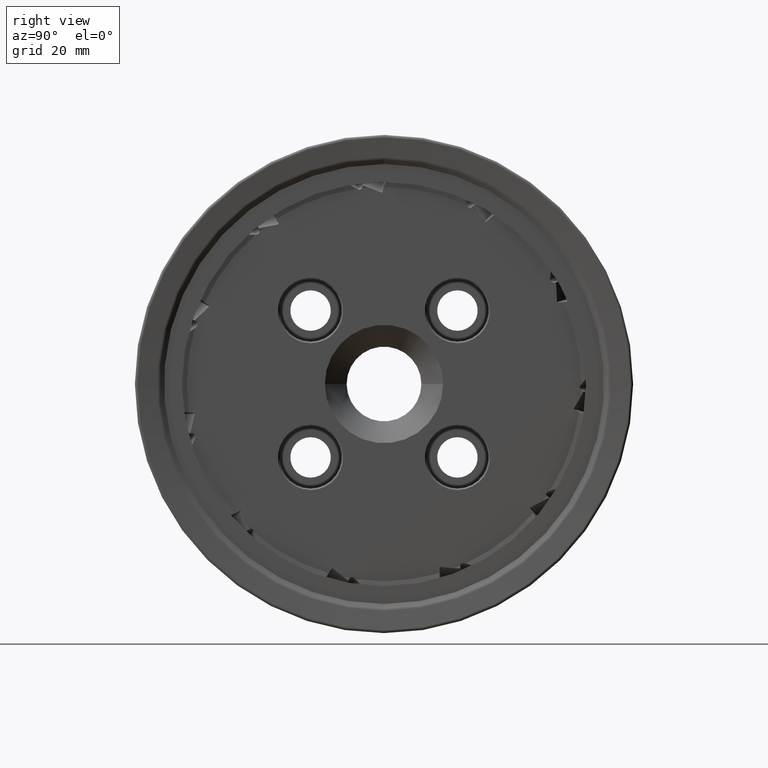
[diagram: clean part render]
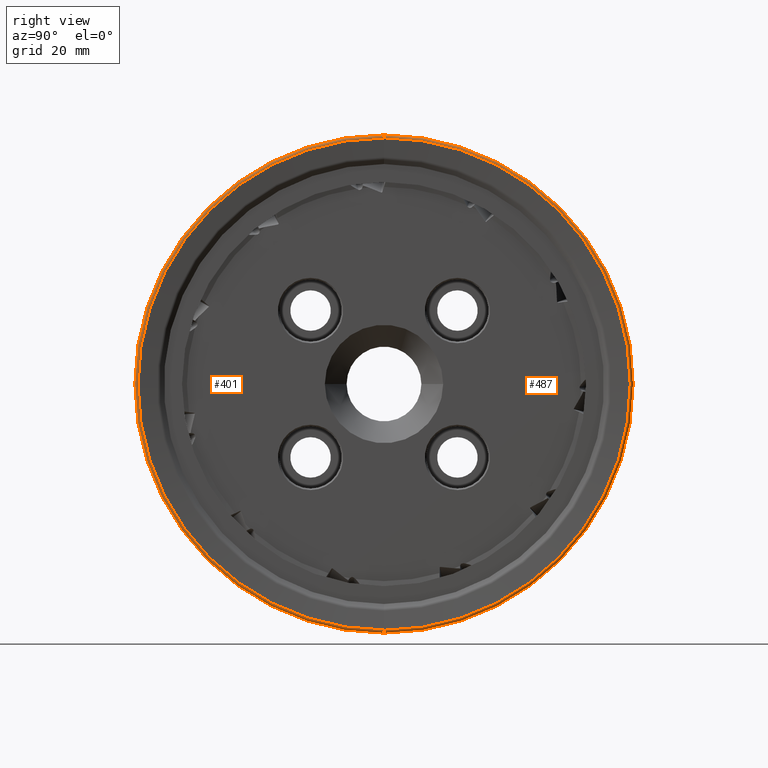
[diagram: same view with one multi-face feature highlighted, each face labeled with its STEP entity id]
A machine part, right view. The highlighted faces form ONE feature: a constant-radius fillet chain: 2 tangent blend faces with common blend radius 0.8162 mm. The faces share edges in the B-rep.
Their STEP definitions:
[1] entity #487 (Torus):
#487 = ADVANCED_FACE ( 'NONE', ( #6866 ), #6871, .T. ) ;
#990 = EDGE_CURVE ( 'NONE', #1880, #2128, #9497, .T. ) ;
#996 = EDGE_CURVE ( 'NONE', #2088, #1880, #9504, .T. ) ;
#1002 = EDGE_CURVE ( 'NONE', #2088, #1895, #9509, .T. ) ;
#1235 = EDGE_CURVE ( 'NONE', #1895, #2128, #9735, .T. ) ;
#1880 = VERTEX_POINT ( 'NONE', #12975 ) ;
#1895 = VERTEX_POINT ( 'NONE', #12990 ) ;
#2088 = VERTEX_POINT ( 'NONE', #13183 ) ;
#2128 = VERTEX_POINT ( 'NONE', #13223 ) ;
#3899 = EDGE_LOOP ( 'NONE', ( #4931, #4193, #4842, #4869 ) ) ;
#4193 = ORIENTED_EDGE ( 'NONE', *, *, #990, .T. ) ;
#4842 = ORIENTED_EDGE ( 'NONE', *, *, #1235, .F. ) ;
#4869 = ORIENTED_EDGE ( 'NONE', *, *, #1002, .F. ) ;
#4931 = ORIENTED_EDGE ( 'NONE', *, *, #996, .T. ) ;
#5764 = AXIS2_PLACEMENT_3D ( 'NONE', #7474, #7473, #7476 ) ;
#6866 = FACE_OUTER_BOUND ( 'NONE', #3899, .T. ) ;
#6871 = TOROIDAL_SURFACE ( 'NONE', #5764, 79.18379672538669900, 0.8162032746133075500 ) ;
#7473 = DIRECTION ( 'NONE',  ( 1.000000000000000000, -0.0000000000000000000, -0.0000000000000000000 ) ) ;
#7474 = CARTESIAN_POINT ( 'NONE',  ( 0.9337967253866993300, 0.0000000000000000000, 0.0000000000000000000 ) ) ;
#7476 = DIRECTION ( 'NONE',  ( 0.0000000000000000000, 0.0000000000000000000, -1.000000000000000000 ) ) ;
#8961 = AXIS2_PLACEMENT_3D ( 'NONE', #10243, #10247, #10248 ) ;
#8965 = AXIS2_PLACEMENT_3D ( 'NONE', #10264, #10265, #10266 ) ;
#8968 = AXIS2_PLACEMENT_3D ( 'NONE', #10280, #10285, #10286 ) ;
#9062 = AXIS2_PLACEMENT_3D ( 'NONE', #11058, #11078, #11079 ) ;
#9497 = CIRCLE ( 'NONE', #8961, 0.8162032746133057700 ) ;
#9504 = CIRCLE ( 'NONE', #8965, 80.00000000000000000 ) ;
#9509 = CIRCLE ( 'NONE', #8968, 0.8162032746133057700 ) ;
#9735 = CIRCLE ( 'NONE', #9062, 79.09236068706619000 ) ;
#10243 = CARTESIAN_POINT ( 'NONE',  ( 0.9337967253866993300, 9.697218320407948100E-015, 79.18379672538669900 ) ) ;
#10247 = DIRECTION ( 'NONE',  ( 0.0000000000000000000, 1.000000000000000000, -1.224646799147353200E-016 ) ) ;
#10248 = DIRECTION ( 'NONE',  ( 0.0000000000000000000, 1.224646799147351200E-016, 1.000000000000000000 ) ) ;
#10264 = CARTESIAN_POINT ( 'NONE',  ( 0.9337967253866992200, 0.0000000000000000000, 0.0000000000000000000 ) ) ;
#10265 = DIRECTION ( 'NONE',  ( 1.000000000000000000, -0.0000000000000000000, -0.0000000000000000000 ) ) ;
#10266 = DIRECTION ( 'NONE',  ( 0.0000000000000000000, 0.0000000000000000000, -1.000000000000000000 ) ) ;
#10280 = CARTESIAN_POINT ( 'NONE',  ( 0.9337967253866993300, 0.0000000000000000000, -79.18379672538669900 ) ) ;
#10285 = DIRECTION ( 'NONE',  ( -0.0000000000000000000, -1.000000000000000000, -0.0000000000000000000 ) ) ;
#10286 = DIRECTION ( 'NONE',  ( 0.0000000000000000000, 0.0000000000000000000, -1.000000000000000000 ) ) ;
#11058 = CARTESIAN_POINT ( 'NONE',  ( 1.744862219897310300, 0.0000000000000000000, 0.0000000000000000000 ) ) ;
#11078 = DIRECTION ( 'NONE',  ( 1.000000000000000000, -0.0000000000000000000, -0.0000000000000000000 ) ) ;
#11079 = DIRECTION ( 'NONE',  ( 0.0000000000000000000, 0.0000000000000000000, -1.000000000000000000 ) ) ;
#12975 = CARTESIAN_POINT ( 'NONE',  ( 0.9337967253866992200, 9.797174393178826100E-015, 80.00000000000000000 ) ) ;
#12990 = CARTESIAN_POINT ( 'NONE',  ( 1.744862219897310300, 0.0000000000000000000, -79.09236068706619000 ) ) ;
#13183 = CARTESIAN_POINT ( 'NONE',  ( 0.9337967253866992200, 0.0000000000000000000, -80.00000000000000000 ) ) ;
#13223 = CARTESIAN_POINT ( 'NONE',  ( 1.744862219897310300, 9.686020635242357200E-015, 79.09236068706619000 ) ) ;
[2] entity #401 (Torus):
#401 = ADVANCED_FACE ( 'NONE', ( #6643 ), #6652, .T. ) ;
#990 = EDGE_CURVE ( 'NONE', #1880, #2128, #9497, .T. ) ;
#1002 = EDGE_CURVE ( 'NONE', #2088, #1895, #9509, .T. ) ;
#1008 = EDGE_CURVE ( 'NONE', #2128, #1895, #9515, .T. ) ;
#1880 = VERTEX_POINT ( 'NONE', #12975 ) ;
#1895 = VERTEX_POINT ( 'NONE', #12990 ) ;
#2088 = VERTEX_POINT ( 'NONE', #13183 ) ;
#2128 = VERTEX_POINT ( 'NONE', #13223 ) ;
#2636 = DIRECTION ( 'NONE',  ( 1.000000000000000000, -0.0000000000000000000, -0.0000000000000000000 ) ) ;
#2637 = CARTESIAN_POINT ( 'NONE',  ( 0.9337967253866993300, 0.0000000000000000000, 0.0000000000000000000 ) ) ;
#2639 = DIRECTION ( 'NONE',  ( 0.0000000000000000000, 0.0000000000000000000, -1.000000000000000000 ) ) ;
#4469 = EDGE_CURVE ( 'NONE', #1880, #2088, #12627, .T. ) ;
#5210 = EDGE_LOOP ( 'NONE', ( #15160, #15184, #15112, #15317 ) ) ;
#5627 = AXIS2_PLACEMENT_3D ( 'NONE', #2637, #2636, #2639 ) ;
#6643 = FACE_OUTER_BOUND ( 'NONE', #5210, .T. ) ;
#6652 = TOROIDAL_SURFACE ( 'NONE', #5627, 79.18379672538669900, 0.8162032746133075500 ) ;
#8961 = AXIS2_PLACEMENT_3D ( 'NONE', #10243, #10247, #10248 ) ;
#8968 = AXIS2_PLACEMENT_3D ( 'NONE', #10280, #10285, #10286 ) ;
#8969 = AXIS2_PLACEMENT_3D ( 'NONE', #10299, #10308, #10309 ) ;
#9220 = AXIS2_PLACEMENT_3D ( 'NONE', #14095, #14102, #14103 ) ;
#9497 = CIRCLE ( 'NONE', #8961, 0.8162032746133057700 ) ;
#9509 = CIRCLE ( 'NONE', #8968, 0.8162032746133057700 ) ;
#9515 = CIRCLE ( 'NONE', #8969, 79.09236068706619000 ) ;
#10243 = CARTESIAN_POINT ( 'NONE',  ( 0.9337967253866993300, 9.697218320407948100E-015, 79.18379672538669900 ) ) ;
#10247 = DIRECTION ( 'NONE',  ( 0.0000000000000000000, 1.000000000000000000, -1.224646799147353200E-016 ) ) ;
#10248 = DIRECTION ( 'NONE',  ( 0.0000000000000000000, 1.224646799147351200E-016, 1.000000000000000000 ) ) ;
#10280 = CARTESIAN_POINT ( 'NONE',  ( 0.9337967253866993300, 0.0000000000000000000, -79.18379672538669900 ) ) ;
#10285 = DIRECTION ( 'NONE',  ( -0.0000000000000000000, -1.000000000000000000, -0.0000000000000000000 ) ) ;
#10286 = DIRECTION ( 'NONE',  ( 0.0000000000000000000, 0.0000000000000000000, -1.000000000000000000 ) ) ;
#10299 = CARTESIAN_POINT ( 'NONE',  ( 1.744862219897310300, 0.0000000000000000000, 0.0000000000000000000 ) ) ;
#10308 = DIRECTION ( 'NONE',  ( 1.000000000000000000, -0.0000000000000000000, -0.0000000000000000000 ) ) ;
#10309 = DIRECTION ( 'NONE',  ( 0.0000000000000000000, 0.0000000000000000000, -1.000000000000000000 ) ) ;
#12627 = CIRCLE ( 'NONE', #9220, 80.00000000000000000 ) ;
#12975 = CARTESIAN_POINT ( 'NONE',  ( 0.9337967253866992200, 9.797174393178826100E-015, 80.00000000000000000 ) ) ;
#12990 = CARTESIAN_POINT ( 'NONE',  ( 1.744862219897310300, 0.0000000000000000000, -79.09236068706619000 ) ) ;
#13183 = CARTESIAN_POINT ( 'NONE',  ( 0.9337967253866992200, 0.0000000000000000000, -80.00000000000000000 ) ) ;
#13223 = CARTESIAN_POINT ( 'NONE',  ( 1.744862219897310300, 9.686020635242357200E-015, 79.09236068706619000 ) ) ;
#14095 = CARTESIAN_POINT ( 'NONE',  ( 0.9337967253866992200, 0.0000000000000000000, 0.0000000000000000000 ) ) ;
#14102 = DIRECTION ( 'NONE',  ( 1.000000000000000000, -0.0000000000000000000, -0.0000000000000000000 ) ) ;
#14103 = DIRECTION ( 'NONE',  ( 0.0000000000000000000, 0.0000000000000000000, -1.000000000000000000 ) ) ;
#15112 = ORIENTED_EDGE ( 'NONE', *, *, #1002, .T. ) ;
#15160 = ORIENTED_EDGE ( 'NONE', *, *, #990, .F. ) ;
#15184 = ORIENTED_EDGE ( 'NONE', *, *, #4469, .T. ) ;
#15317 = ORIENTED_EDGE ( 'NONE', *, *, #1008, .F. ) ;